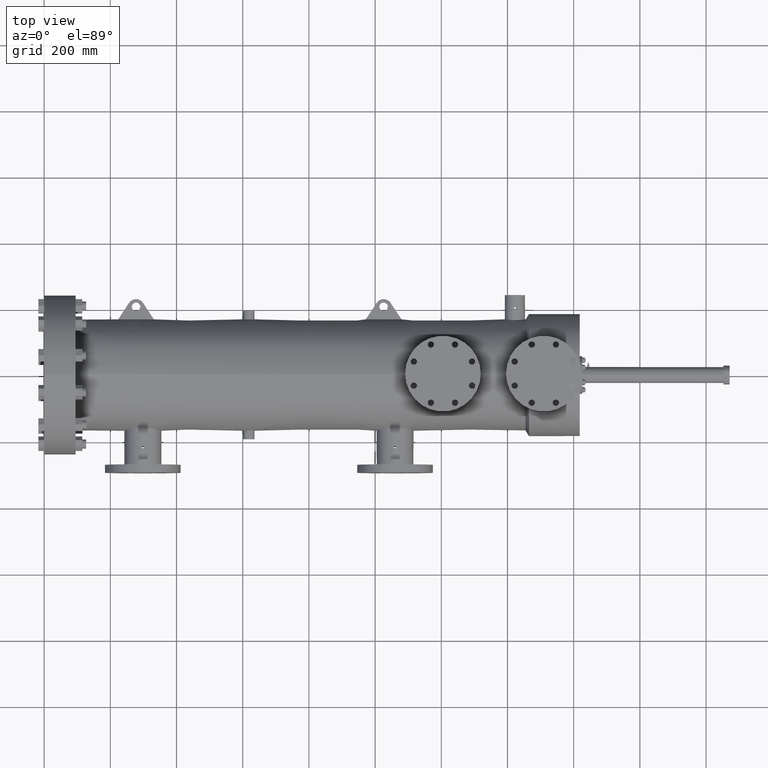
[diagram: clean part render]
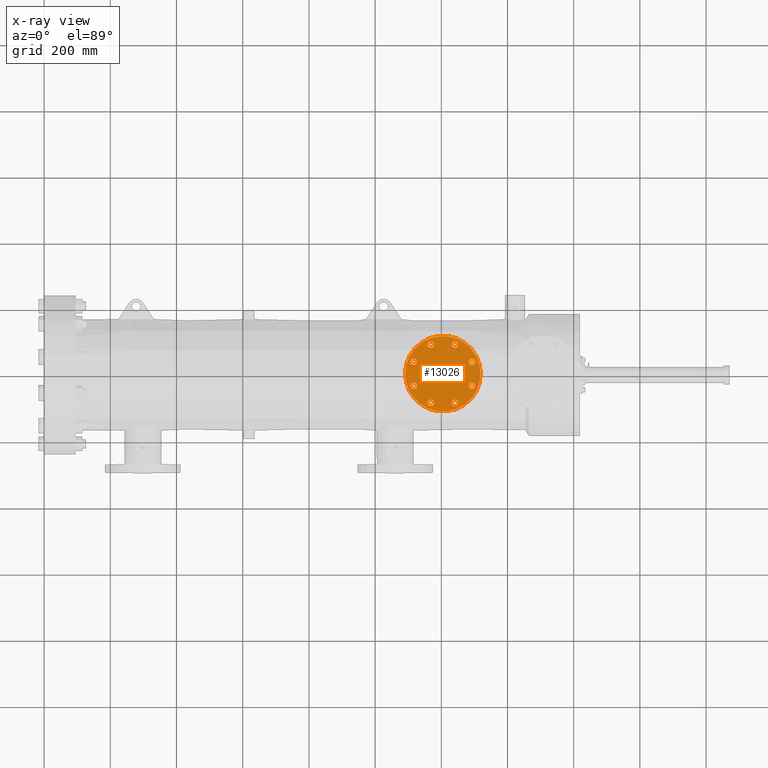
[diagram: x-ray — body ghosted, one internal face saturated and labeled with its STEP entity id]
A machine part, top view, then the same camera in x-ray: the body is ghosted and one INTERNAL B-rep face — a face not visible from any outside direction — is saturated and labeled: STEP entity #13026.
In plain terms, the highlighted planar face has unit normal (0, 0, 1).
Its self-contained STEP definition (entity closure, byte-faithful):
#69 = FACE_BOUND ( 'NONE', #10050, .T. ) ;
#543 = EDGE_CURVE ( 'NONE', #17277, #11318, #7417, .T. ) ;
#615 = FACE_BOUND ( 'NONE', #15213, .T. ) ;
#866 = DIRECTION ( 'NONE',  ( 0.0000000000000000000, 0.0000000000000000000, 1.000000000000000000 ) ) ;
#1277 = CIRCLE ( 'NONE', #12071, 0.3750000000000002220 ) ;
#1450 = DIRECTION ( 'NONE',  ( 0.0000000000000000000, 0.0000000000000000000, 1.000000000000000000 ) ) ;
#1530 = CIRCLE ( 'NONE', #2762, 0.3750000000000089928 ) ;
#1576 = DIRECTION ( 'NONE',  ( 1.000000000000000000, 0.0000000000000000000, 0.0000000000000000000 ) ) ;
#1590 = AXIS2_PLACEMENT_3D ( 'NONE', #21639, #16251, #19832 ) ;
#1617 = DIRECTION ( 'NONE',  ( 0.0000000000000000000, 0.0000000000000000000, 1.000000000000000000 ) ) ;
#1751 = EDGE_LOOP ( 'NONE', ( #10705, #9059 ) ) ;
#1772 = EDGE_LOOP ( 'NONE', ( #20830, #13600 ) ) ;
#1876 = CARTESIAN_POINT ( 'NONE',  ( 43.96645175308280784, -1.435062871369116255, 8.500000000000000000 ) ) ;
#2011 = DIRECTION ( 'NONE',  ( 1.000000000000000000, 0.0000000000000000000, -0.0000000000000000000 ) ) ;
#2097 = VERTEX_POINT ( 'NONE', #11737 ) ;
#2158 = DIRECTION ( 'NONE',  ( 0.0000000000000000000, 0.0000000000000000000, 1.000000000000000000 ) ) ;
#2162 = ORIENTED_EDGE ( 'NONE', *, *, #8121, .T. ) ;
#2248 = FACE_BOUND ( 'NONE', #1772, .T. ) ;
#2474 = AXIS2_PLACEMENT_3D ( 'NONE', #10897, #11200, #7384 ) ;
#2762 = AXIS2_PLACEMENT_3D ( 'NONE', #13102, #14859, #16566 ) ;
#2781 = FACE_BOUND ( 'NONE', #4041, .T. ) ;
#2966 = ORIENTED_EDGE ( 'NONE', *, *, #6289, .T. ) ;
#3028 = DIRECTION ( 'NONE',  ( 0.0000000000000000000, 0.0000000000000000000, 1.000000000000000000 ) ) ;
#3177 = DIRECTION ( 'NONE',  ( 1.000000000000000000, 0.0000000000000000000, 0.0000000000000000000 ) ) ;
#3218 = CARTESIAN_POINT ( 'NONE',  ( 46.37093712863109118, -3.464548246917304564, 8.500000000000000000 ) ) ;
#3334 = VERTEX_POINT ( 'NONE', #21689 ) ;
#3374 = CIRCLE ( 'NONE', #20843, 0.3750000000000002220 ) ;
#3557 = AXIS2_PLACEMENT_3D ( 'NONE', #18373, #866, #19991 ) ;
#3815 = ORIENTED_EDGE ( 'NONE', *, *, #17085, .T. ) ;
#3894 = ORIENTED_EDGE ( 'NONE', *, *, #13393, .T. ) ;
#4041 = EDGE_LOOP ( 'NONE', ( #5713, #22080 ) ) ;
#4416 = CARTESIAN_POINT ( 'NONE',  ( 50.89554824691737878, 1.435062871369210180, 8.500000000000000000 ) ) ;
#4473 = VERTEX_POINT ( 'NONE', #19012 ) ;
#4481 = EDGE_CURVE ( 'NONE', #8055, #7010, #16459, .T. ) ;
#4943 = FACE_BOUND ( 'NONE', #16869, .T. ) ;
#4987 = CARTESIAN_POINT ( 'NONE',  ( 48.86606287136910964, 3.464548246917399599, 8.500000000000000000 ) ) ;
#5141 = DIRECTION ( 'NONE',  ( 0.0000000000000000000, 0.0000000000000000000, 1.000000000000000000 ) ) ;
#5192 = CARTESIAN_POINT ( 'NONE',  ( 50.89554824691737878, 1.435062871369210180, 8.500000000000000000 ) ) ;
#5441 = EDGE_CURVE ( 'NONE', #5905, #13428, #18849, .T. ) ;
#5461 = ORIENTED_EDGE ( 'NONE', *, *, #16900, .T. ) ;
#5713 = ORIENTED_EDGE ( 'NONE', *, *, #21894, .T. ) ;
#5905 = VERTEX_POINT ( 'NONE', #9835 ) ;
#6166 = EDGE_LOOP ( 'NONE', ( #20683, #21527 ) ) ;
#6289 = EDGE_CURVE ( 'NONE', #7827, #2097, #20745, .T. ) ;
#6295 = EDGE_CURVE ( 'NONE', #4473, #9386, #1277, .T. ) ;
#6303 = DIRECTION ( 'NONE',  ( 1.000000000000000000, 0.0000000000000000000, 0.0000000000000000000 ) ) ;
#6399 = CIRCLE ( 'NONE', #13479, 0.3750000000000002220 ) ;
#6896 = AXIS2_PLACEMENT_3D ( 'NONE', #17003, #1450, #11620 ) ;
#7010 = VERTEX_POINT ( 'NONE', #10798 ) ;
#7145 = DIRECTION ( 'NONE',  ( 0.0000000000000000000, 0.0000000000000000000, 1.000000000000000000 ) ) ;
#7185 = EDGE_CURVE ( 'NONE', #15173, #20815, #20964, .T. ) ;
#7213 = CIRCLE ( 'NONE', #6896, 0.3750000000000002220 ) ;
#7384 = DIRECTION ( 'NONE',  ( 1.000000000000000000, 0.0000000000000000000, 0.0000000000000000000 ) ) ;
#7417 = CIRCLE ( 'NONE', #18705, 4.500000000000002665 ) ;
#7460 = CARTESIAN_POINT ( 'NONE',  ( 49.24106287136910964, 3.464548246917399599, 8.500000000000000000 ) ) ;
#7623 = FACE_OUTER_BOUND ( 'NONE', #6166, .T. ) ;
#7709 = CARTESIAN_POINT ( 'NONE',  ( 51.93100000000000449, -4.286263797015734623E-16, 8.500000000000000000 ) ) ;
#7827 = VERTEX_POINT ( 'NONE', #3218 ) ;
#8031 = AXIS2_PLACEMENT_3D ( 'NONE', #1876, #18875, #8511 ) ;
#8055 = VERTEX_POINT ( 'NONE', #12583 ) ;
#8121 = EDGE_CURVE ( 'NONE', #16780, #11218, #21212, .T. ) ;
#8511 = DIRECTION ( 'NONE',  ( 1.000000000000000000, 0.0000000000000000000, 0.0000000000000000000 ) ) ;
#8578 = CARTESIAN_POINT ( 'NONE',  ( 45.99593712863092776, 3.464548246917334318, 8.500000000000000000 ) ) ;
#8627 = ORIENTED_EDGE ( 'NONE', *, *, #6295, .T. ) ;
#8674 = DIRECTION ( 'NONE',  ( 0.0000000000000000000, 0.0000000000000000000, 1.000000000000000000 ) ) ;
#8802 = ORIENTED_EDGE ( 'NONE', *, *, #14980, .T. ) ;
#8904 = DIRECTION ( 'NONE',  ( 1.000000000000000000, 0.0000000000000000000, 0.0000000000000000000 ) ) ;
#9059 = ORIENTED_EDGE ( 'NONE', *, *, #7185, .T. ) ;
#9119 = CIRCLE ( 'NONE', #19291, 0.3750000000000089928 ) ;
#9329 = AXIS2_PLACEMENT_3D ( 'NONE', #11745, #5141, #20473 ) ;
#9386 = VERTEX_POINT ( 'NONE', #7460 ) ;
#9388 = AXIS2_PLACEMENT_3D ( 'NONE', #12667, #19405, #10797 ) ;
#9800 = DIRECTION ( 'NONE',  ( 0.0000000000000000000, 0.0000000000000000000, 1.000000000000000000 ) ) ;
#9835 = CARTESIAN_POINT ( 'NONE',  ( 51.27054824691744983, -1.435062871368961046, 8.500000000000000000 ) ) ;
#9889 = AXIS2_PLACEMENT_3D ( 'NONE', #15116, #3028, #17048 ) ;
#10021 = AXIS2_PLACEMENT_3D ( 'NONE', #8578, #12596, #18860 ) ;
#10050 = EDGE_LOOP ( 'NONE', ( #8802, #3894 ) ) ;
#10060 = DIRECTION ( 'NONE',  ( 0.0000000000000000000, 0.0000000000000000000, 1.000000000000000000 ) ) ;
#10261 = DIRECTION ( 'NONE',  ( 0.0000000000000000000, 0.0000000000000000000, 1.000000000000000000 ) ) ;
#10705 = ORIENTED_EDGE ( 'NONE', *, *, #21655, .T. ) ;
#10733 = CIRCLE ( 'NONE', #9388, 0.3750000000000002220 ) ;
#10797 = DIRECTION ( 'NONE',  ( 1.000000000000000000, 0.0000000000000000000, 0.0000000000000000000 ) ) ;
#10798 = CARTESIAN_POINT ( 'NONE',  ( 45.62093712863092065, 3.464548246917334318, 8.500000000000000000 ) ) ;
#10897 = CARTESIAN_POINT ( 'NONE',  ( 43.96645175308280784, -1.435062871369116255, 8.500000000000000000 ) ) ;
#11200 = DIRECTION ( 'NONE',  ( 0.0000000000000000000, 0.0000000000000000000, 1.000000000000000000 ) ) ;
#11218 = VERTEX_POINT ( 'NONE', #18217 ) ;
#11258 = CARTESIAN_POINT ( 'NONE',  ( 51.27054824691739299, 1.435062871369210180, 8.500000000000000000 ) ) ;
#11305 = CIRCLE ( 'NONE', #21956, 0.3750000000000002220 ) ;
#11318 = VERTEX_POINT ( 'NONE', #12880 ) ;
#11469 = DIRECTION ( 'NONE',  ( 0.0000000000000000000, 0.0000000000000000000, 1.000000000000000000 ) ) ;
#11543 = DIRECTION ( 'NONE',  ( 1.000000000000000000, 0.0000000000000000000, 0.0000000000000000000 ) ) ;
#11620 = DIRECTION ( 'NONE',  ( 1.000000000000000000, 0.0000000000000000000, 0.0000000000000000000 ) ) ;
#11650 = EDGE_CURVE ( 'NONE', #2097, #7827, #3374, .T. ) ;
#11727 = CARTESIAN_POINT ( 'NONE',  ( 47.43100000000000449, -9.797174393178823685E-16, 8.500000000000000000 ) ) ;
#11737 = CARTESIAN_POINT ( 'NONE',  ( 45.62093712863109118, -3.464548246917304564, 8.500000000000000000 ) ) ;
#11745 = CARTESIAN_POINT ( 'NONE',  ( 45.99593712863109118, -3.464548246917304564, 8.500000000000000000 ) ) ;
#12071 = AXIS2_PLACEMENT_3D ( 'NONE', #4987, #10060, #1576 ) ;
#12365 = CARTESIAN_POINT ( 'NONE',  ( 47.43100000000000449, -9.797174393178823685E-16, 8.500000000000000000 ) ) ;
#12505 = CARTESIAN_POINT ( 'NONE',  ( 48.86606287136910964, 3.464548246917399599, 8.500000000000000000 ) ) ;
#12583 = CARTESIAN_POINT ( 'NONE',  ( 46.37093712863094197, 3.464548246917334318, 8.500000000000000000 ) ) ;
#12596 = DIRECTION ( 'NONE',  ( 0.0000000000000000000, 0.0000000000000000000, 1.000000000000000000 ) ) ;
#12667 = CARTESIAN_POINT ( 'NONE',  ( 50.89554824691744983, -1.435062871368961046, 8.500000000000000000 ) ) ;
#12876 = CARTESIAN_POINT ( 'NONE',  ( 44.34145175308280784, -1.435062871369116255, 8.500000000000000000 ) ) ;
#12880 = CARTESIAN_POINT ( 'NONE',  ( 42.93099999999999739, -9.797174393178823685E-16, 8.500000000000000000 ) ) ;
#13026 = ADVANCED_FACE ( 'NONE', ( #7623, #2781, #17907, #18995, #2248, #16264, #4943, #69, #615 ), #14038, .F. ) ;
#13036 = CARTESIAN_POINT ( 'NONE',  ( 49.24106287136925886, -3.464548246917241059, 8.500000000000000000 ) ) ;
#13102 = CARTESIAN_POINT ( 'NONE',  ( 45.99593712863092776, 3.464548246917334318, 8.500000000000000000 ) ) ;
#13179 = AXIS2_PLACEMENT_3D ( 'NONE', #15121, #18578, #3177 ) ;
#13393 = EDGE_CURVE ( 'NONE', #19451, #13669, #15445, .T. ) ;
#13428 = VERTEX_POINT ( 'NONE', #16063 ) ;
#13479 = AXIS2_PLACEMENT_3D ( 'NONE', #20211, #11469, #6303 ) ;
#13600 = ORIENTED_EDGE ( 'NONE', *, *, #5441, .T. ) ;
#13669 = VERTEX_POINT ( 'NONE', #15224 ) ;
#13731 = DIRECTION ( 'NONE',  ( 1.000000000000000000, 0.0000000000000000000, 0.0000000000000000000 ) ) ;
#13839 = AXIS2_PLACEMENT_3D ( 'NONE', #4416, #9800, #11543 ) ;
#13864 = EDGE_CURVE ( 'NONE', #11318, #17277, #19504, .T. ) ;
#14038 = PLANE ( 'NONE',  #21860 ) ;
#14284 = CIRCLE ( 'NONE', #13179, 0.3750000000000002220 ) ;
#14859 = DIRECTION ( 'NONE',  ( 0.0000000000000000000, 0.0000000000000000000, 1.000000000000000000 ) ) ;
#14980 = EDGE_CURVE ( 'NONE', #13669, #19451, #17540, .T. ) ;
#15116 = CARTESIAN_POINT ( 'NONE',  ( 50.89554824691744983, -1.435062871368961046, 8.500000000000000000 ) ) ;
#15121 = CARTESIAN_POINT ( 'NONE',  ( 43.96645175308274389, 1.435062871369055193, 8.500000000000000000 ) ) ;
#15173 = VERTEX_POINT ( 'NONE', #11258 ) ;
#15213 = EDGE_LOOP ( 'NONE', ( #20504, #18852 ) ) ;
#15224 = CARTESIAN_POINT ( 'NONE',  ( 43.59145175308280784, -1.435062871369116255, 8.500000000000000000 ) ) ;
#15445 = CIRCLE ( 'NONE', #2474, 0.3750000000000002220 ) ;
#16063 = CARTESIAN_POINT ( 'NONE',  ( 50.52054824691744983, -1.435062871368961046, 8.500000000000000000 ) ) ;
#16251 = DIRECTION ( 'NONE',  ( 0.0000000000000000000, 0.0000000000000000000, 1.000000000000000000 ) ) ;
#16264 = FACE_BOUND ( 'NONE', #19813, .T. ) ;
#16459 = CIRCLE ( 'NONE', #10021, 0.3750000000000089928 ) ;
#16566 = DIRECTION ( 'NONE',  ( 1.000000000000000000, 0.0000000000000000000, 0.0000000000000000000 ) ) ;
#16780 = VERTEX_POINT ( 'NONE', #13036 ) ;
#16869 = EDGE_LOOP ( 'NONE', ( #17248, #2966 ) ) ;
#16900 = EDGE_CURVE ( 'NONE', #11218, #16780, #7213, .T. ) ;
#16978 = VERTEX_POINT ( 'NONE', #22230 ) ;
#17003 = CARTESIAN_POINT ( 'NONE',  ( 48.86606287136925886, -3.464548246917241059, 8.500000000000000000 ) ) ;
#17048 = DIRECTION ( 'NONE',  ( 1.000000000000000000, 0.0000000000000000000, 0.0000000000000000000 ) ) ;
#17085 = EDGE_CURVE ( 'NONE', #9386, #4473, #11305, .T. ) ;
#17248 = ORIENTED_EDGE ( 'NONE', *, *, #11650, .T. ) ;
#17277 = VERTEX_POINT ( 'NONE', #7709 ) ;
#17540 = CIRCLE ( 'NONE', #8031, 0.3750000000000002220 ) ;
#17701 = DIRECTION ( 'NONE',  ( 1.000000000000000000, 0.0000000000000000000, 0.0000000000000000000 ) ) ;
#17907 = FACE_BOUND ( 'NONE', #22143, .T. ) ;
#18217 = CARTESIAN_POINT ( 'NONE',  ( 48.49106287136925886, -3.464548246917241059, 8.500000000000000000 ) ) ;
#18373 = CARTESIAN_POINT ( 'NONE',  ( 48.86606287136925886, -3.464548246917241059, 8.500000000000000000 ) ) ;
#18578 = DIRECTION ( 'NONE',  ( 0.0000000000000000000, 0.0000000000000000000, 1.000000000000000000 ) ) ;
#18705 = AXIS2_PLACEMENT_3D ( 'NONE', #11727, #8674, #8904 ) ;
#18849 = CIRCLE ( 'NONE', #9889, 0.3750000000000002220 ) ;
#18852 = ORIENTED_EDGE ( 'NONE', *, *, #21828, .T. ) ;
#18860 = DIRECTION ( 'NONE',  ( 1.000000000000000000, 0.0000000000000000000, 0.0000000000000000000 ) ) ;
#18875 = DIRECTION ( 'NONE',  ( 0.0000000000000000000, 0.0000000000000000000, 1.000000000000000000 ) ) ;
#18995 = FACE_BOUND ( 'NONE', #1751, .T. ) ;
#18999 = EDGE_CURVE ( 'NONE', #13428, #5905, #10733, .T. ) ;
#19012 = CARTESIAN_POINT ( 'NONE',  ( 48.49106287136910964, 3.464548246917399599, 8.500000000000000000 ) ) ;
#19291 = AXIS2_PLACEMENT_3D ( 'NONE', #5192, #10261, #22337 ) ;
#19405 = DIRECTION ( 'NONE',  ( 0.0000000000000000000, 0.0000000000000000000, 1.000000000000000000 ) ) ;
#19451 = VERTEX_POINT ( 'NONE', #12876 ) ;
#19504 = CIRCLE ( 'NONE', #1590, 4.500000000000002665 ) ;
#19813 = EDGE_LOOP ( 'NONE', ( #5461, #2162 ) ) ;
#19832 = DIRECTION ( 'NONE',  ( 1.000000000000000000, 0.0000000000000000000, 0.0000000000000000000 ) ) ;
#19991 = DIRECTION ( 'NONE',  ( 1.000000000000000000, 0.0000000000000000000, 0.0000000000000000000 ) ) ;
#20211 = CARTESIAN_POINT ( 'NONE',  ( 43.96645175308274389, 1.435062871369055193, 8.500000000000000000 ) ) ;
#20473 = DIRECTION ( 'NONE',  ( 1.000000000000000000, 0.0000000000000000000, 0.0000000000000000000 ) ) ;
#20504 = ORIENTED_EDGE ( 'NONE', *, *, #21406, .T. ) ;
#20592 = CARTESIAN_POINT ( 'NONE',  ( 45.99593712863109118, -3.464548246917304564, 8.500000000000000000 ) ) ;
#20683 = ORIENTED_EDGE ( 'NONE', *, *, #13864, .F. ) ;
#20745 = CIRCLE ( 'NONE', #9329, 0.3750000000000002220 ) ;
#20815 = VERTEX_POINT ( 'NONE', #21732 ) ;
#20830 = ORIENTED_EDGE ( 'NONE', *, *, #18999, .T. ) ;
#20843 = AXIS2_PLACEMENT_3D ( 'NONE', #20592, #1617, #13731 ) ;
#20964 = CIRCLE ( 'NONE', #13839, 0.3750000000000089928 ) ;
#21212 = CIRCLE ( 'NONE', #3557, 0.3750000000000002220 ) ;
#21406 = EDGE_CURVE ( 'NONE', #16978, #3334, #14284, .T. ) ;
#21527 = ORIENTED_EDGE ( 'NONE', *, *, #543, .F. ) ;
#21639 = CARTESIAN_POINT ( 'NONE',  ( 47.43100000000000449, -9.797174393178823685E-16, 8.500000000000000000 ) ) ;
#21655 = EDGE_CURVE ( 'NONE', #20815, #15173, #9119, .T. ) ;
#21689 = CARTESIAN_POINT ( 'NONE',  ( 44.34145175308274389, 1.435062871369055193, 8.500000000000000000 ) ) ;
#21732 = CARTESIAN_POINT ( 'NONE',  ( 50.52054824691737167, 1.435062871369210180, 8.500000000000000000 ) ) ;
#21828 = EDGE_CURVE ( 'NONE', #3334, #16978, #6399, .T. ) ;
#21860 = AXIS2_PLACEMENT_3D ( 'NONE', #12365, #7145, #2011 ) ;
#21894 = EDGE_CURVE ( 'NONE', #7010, #8055, #1530, .T. ) ;
#21956 = AXIS2_PLACEMENT_3D ( 'NONE', #12505, #2158, #17701 ) ;
#22080 = ORIENTED_EDGE ( 'NONE', *, *, #4481, .T. ) ;
#22143 = EDGE_LOOP ( 'NONE', ( #8627, #3815 ) ) ;
#22230 = CARTESIAN_POINT ( 'NONE',  ( 43.59145175308274389, 1.435062871369055193, 8.500000000000000000 ) ) ;
#22337 = DIRECTION ( 'NONE',  ( 1.000000000000000000, 0.0000000000000000000, 0.0000000000000000000 ) ) ;